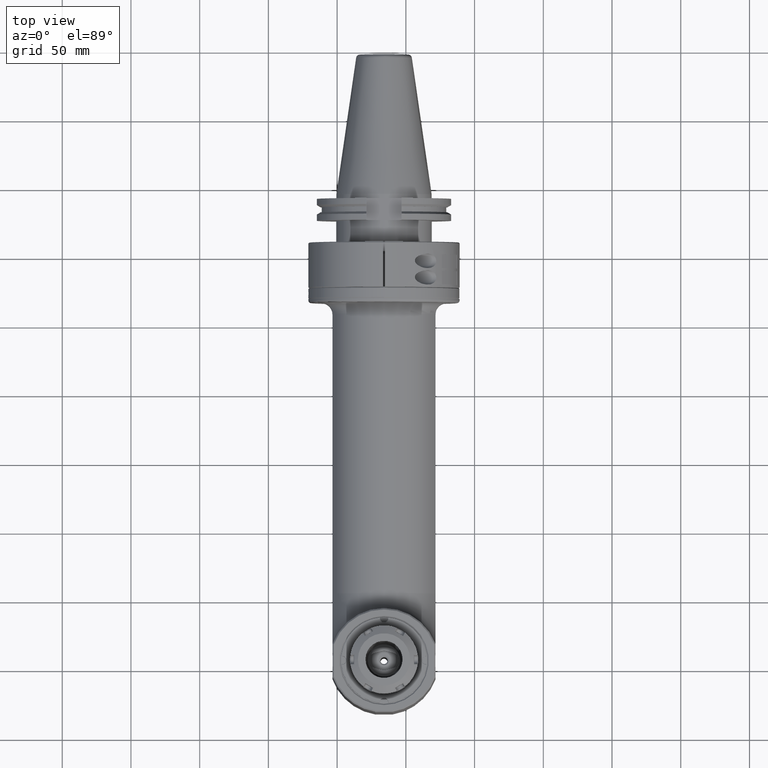
[diagram: clean part render]
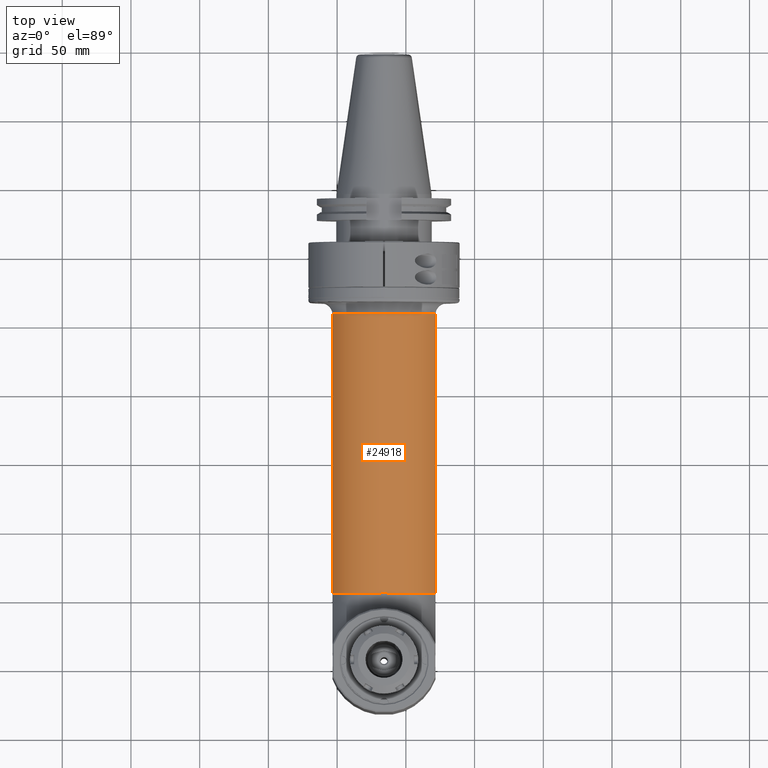
[diagram: same view with one face highlighted and labeled with its STEP entity id]
A machine part, top view. The second image highlights one B-rep face of the part: STEP entity #24918.
In plain terms, the highlighted cylindrical surface (partial cylindrical patch) has radius 40 mm, axis along (0, -1, 0).
Its self-contained STEP definition (entity closure, byte-faithful):
#948=LINE('',#37193,#3361);
#1032=LINE('',#37699,#3445);
#3361=VECTOR('',#29124,203.5);
#3445=VECTOR('',#29516,203.5);
#5738=CYLINDRICAL_SURFACE('',#26638,40.);
#6255=FACE_OUTER_BOUND('',#7746,.T.);
#7746=EDGE_LOOP('',(#17369,#17370,#17371,#17372));
#9318=CIRCLE('',#26637,40.);
#9319=CIRCLE('',#26639,40.);
#10202=VERTEX_POINT('',#37190);
#10203=VERTEX_POINT('',#37192);
#10310=VERTEX_POINT('',#37696);
#10311=VERTEX_POINT('',#37698);
#12778=EDGE_CURVE('',#10203,#10202,#948,.T.);
#12951=EDGE_CURVE('',#10310,#10311,#1032,.T.);
#13204=EDGE_CURVE('',#10311,#10202,#9318,.T.);
#13205=EDGE_CURVE('',#10310,#10203,#9319,.T.);
#17369=ORIENTED_EDGE('',*,*,#12951,.F.);
#17370=ORIENTED_EDGE('',*,*,#13205,.T.);
#17371=ORIENTED_EDGE('',*,*,#12778,.T.);
#17372=ORIENTED_EDGE('',*,*,#13204,.F.);
#24918=ADVANCED_FACE('',(#6255),#5738,.T.);
#26637=AXIS2_PLACEMENT_3D('',#38204,#29775,#29776);
#26638=AXIS2_PLACEMENT_3D('',#38205,#29777,#29778);
#26639=AXIS2_PLACEMENT_3D('',#38206,#29779,#29780);
#29124=DIRECTION('',(0.,-1.,0.));
#29516=DIRECTION('',(0.,-1.,0.));
#29775=DIRECTION('center_axis',(0.,-1.,0.));
#29776=DIRECTION('ref_axis',(0.937499999999992,0.,0.347985272676897));
#29777=DIRECTION('center_axis',(0.,-1.,0.));
#29778=DIRECTION('ref_axis',(-1.,0.,0.));
#29779=DIRECTION('center_axis',(0.,-1.,0.));
#29780=DIRECTION('ref_axis',(0.937499999999992,0.,0.347985272676897));
#37190=CARTESIAN_POINT('',(-37.5,49.5,13.91941090708));
#37192=CARTESIAN_POINT('',(-37.5,253.,13.91941090708));
#37193=CARTESIAN_POINT('',(-37.5,253.,13.91941090708));
#37696=CARTESIAN_POINT('',(37.5,253.,13.91941090708));
#37698=CARTESIAN_POINT('',(37.5,49.5,13.91941090708));
#37699=CARTESIAN_POINT('',(37.5,253.,13.91941090708));
#38204=CARTESIAN_POINT('Origin',(-1.515621780731E-14,49.5,0.));
#38205=CARTESIAN_POINT('Origin',(0.,311.85,0.));
#38206=CARTESIAN_POINT('Origin',(0.,253.,0.));